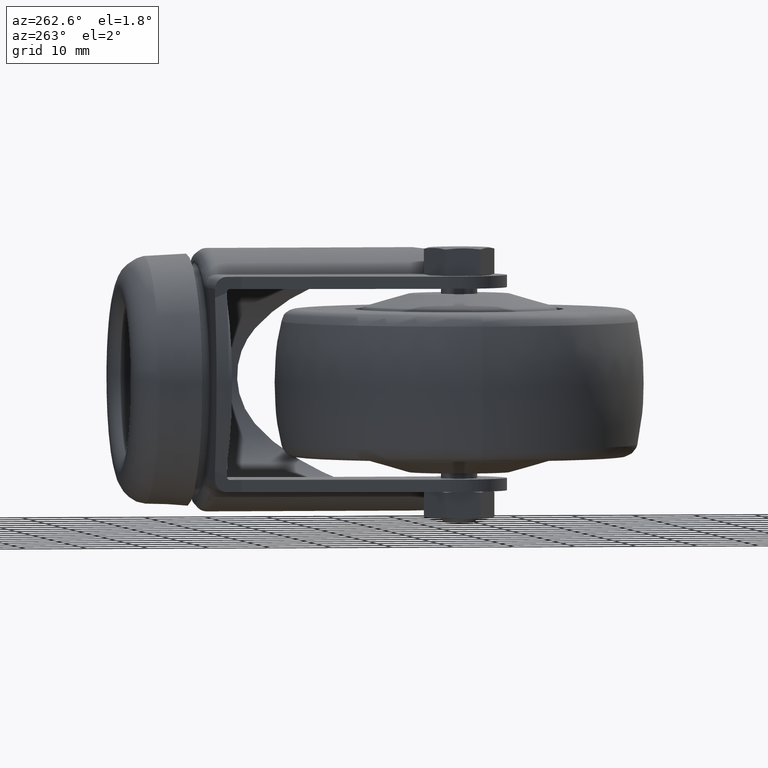
[diagram: clean part render]
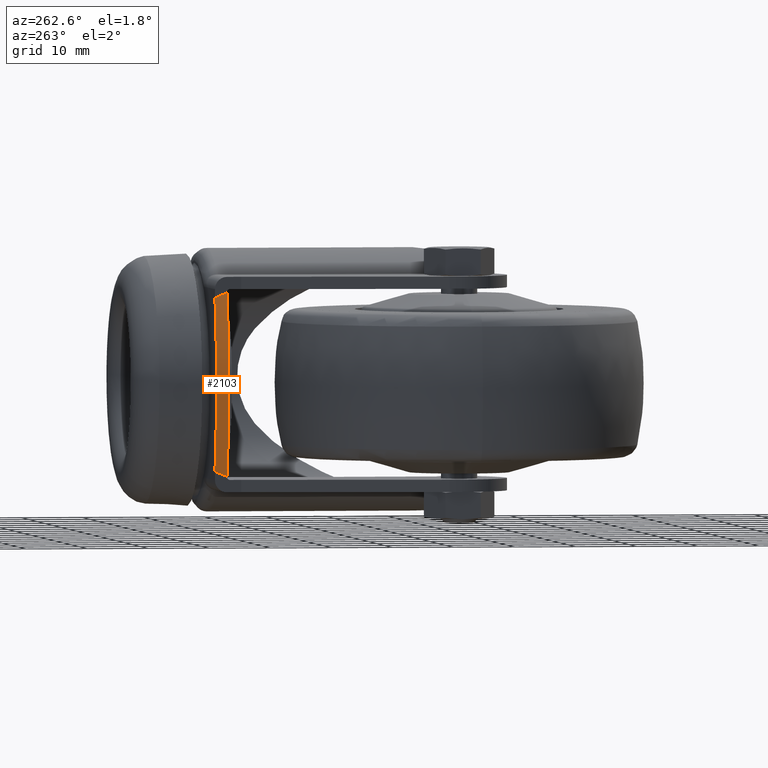
[diagram: same view with one face highlighted and labeled with its STEP entity id]
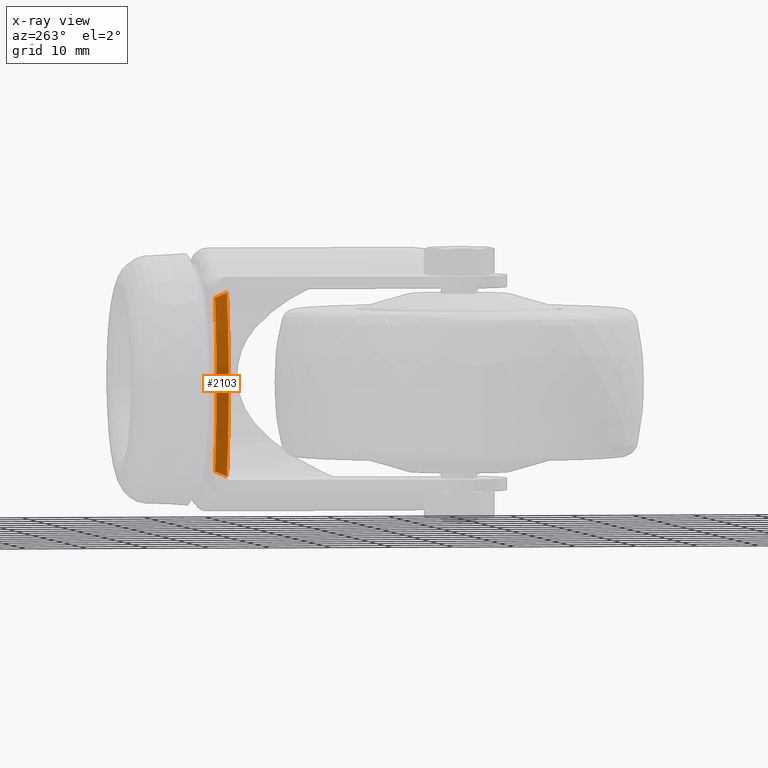
[diagram: x-ray of the same camera — body ghosted, the highlighted face saturated]
A machine part, auxiliary view. The second image highlights one B-rep face of the part: STEP entity #2103.
The next image is the same camera in x-ray: the body ghosted, the highlighted face saturated — about 0% of this face is hidden behind the body in this view.
In plain terms, the highlighted cylindrical surface (partial cylindrical patch) has radius 49.0473 mm, axis along (0, -1, 0).
Its self-contained STEP definition (entity closure, byte-faithful):
#106=ELLIPSE('',#2525,392.025730318647,49.0473404255318);
#109=ELLIPSE('',#2538,392.025730318647,49.0473404255318);
#145=CYLINDRICAL_SURFACE('',#2536,49.0473404255318);
#312=FACE_OUTER_BOUND('',#469,.T.);
#469=EDGE_LOOP('',(#1518,#1519,#1520,#1521));
#802=CIRCLE('',#2533,49.0473404255318);
#805=CIRCLE('',#2537,49.0473404255318);
#933=VERTEX_POINT('',#3619);
#934=VERTEX_POINT('',#3620);
#949=VERTEX_POINT('',#3659);
#954=VERTEX_POINT('',#3671);
#1140=EDGE_CURVE('',#933,#934,#106,.T.);
#1156=EDGE_CURVE('',#933,#949,#802,.T.);
#1162=EDGE_CURVE('',#934,#954,#805,.T.);
#1163=EDGE_CURVE('',#954,#949,#109,.T.);
#1518=ORIENTED_EDGE('',*,*,#1156,.F.);
#1519=ORIENTED_EDGE('',*,*,#1140,.T.);
#1520=ORIENTED_EDGE('',*,*,#1162,.T.);
#1521=ORIENTED_EDGE('',*,*,#1163,.T.);
#2103=ADVANCED_FACE('',(#312),#145,.T.);
#2525=AXIS2_PLACEMENT_3D('',#3621,#2925,#2926);
#2533=AXIS2_PLACEMENT_3D('',#3660,#2950,#2951);
#2536=AXIS2_PLACEMENT_3D('',#3670,#2959,#2960);
#2537=AXIS2_PLACEMENT_3D('',#3672,#2961,#2962);
#2538=AXIS2_PLACEMENT_3D('',#3673,#2963,#2964);
#2925=DIRECTION('center_axis',(-0.99214255466937,-0.12511255418277,0.));
#2926=DIRECTION('ref_axis',(-0.12511255418277,0.99214255466937,0.));
#2950=DIRECTION('center_axis',(0.,1.,0.));
#2951=DIRECTION('ref_axis',(1.,0.,0.));
#2959=DIRECTION('center_axis',(0.,-1.,0.));
#2960=DIRECTION('ref_axis',(0.,0.,1.));
#2961=DIRECTION('center_axis',(0.,1.,0.));
#2962=DIRECTION('ref_axis',(1.,0.,0.));
#2963=DIRECTION('center_axis',(-0.99214255466937,-0.12511255418277,0.));
#2964=DIRECTION('ref_axis',(-0.12511255418277,0.99214255466937,0.));
#3619=CARTESIAN_POINT('',(-4.75955863808323,40.6,-14.1000906800252));
#3620=CARTESIAN_POINT('',(-4.50735182849937,38.6,-14.9145813412273));
#3621=CARTESIAN_POINT('Origin',(42.2173404255318,-331.926809574468,-1.12757025938492E-14));
#3659=CARTESIAN_POINT('',(-4.75955863808323,40.6,14.1000906800251));
#3660=CARTESIAN_POINT('Origin',(42.2173404255318,40.6,-1.12757025938492E-14));
#3670=CARTESIAN_POINT('Origin',(42.2173404255318,38.6,-1.12757025938492E-14));
#3671=CARTESIAN_POINT('',(-4.50735182849937,38.6,14.9145813412273));
#3672=CARTESIAN_POINT('Origin',(42.2173404255318,38.6,-1.12757025938492E-14));
#3673=CARTESIAN_POINT('Origin',(42.2173404255318,-331.926809574468,-1.12757025938492E-14));